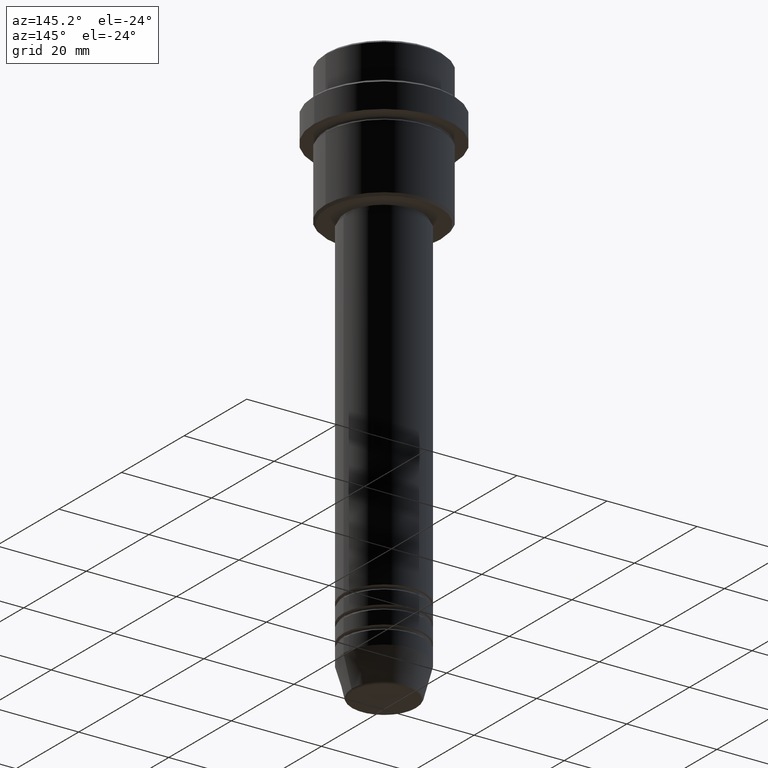
[diagram: clean part render]
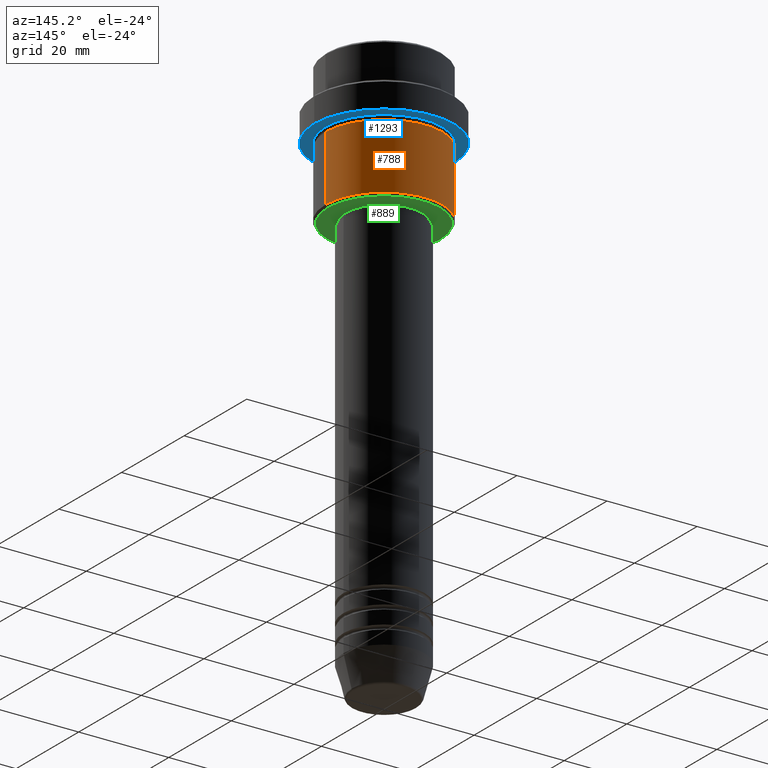
[diagram: same view with three faces highlighted in distinct colors, each labeled with its STEP entity id]
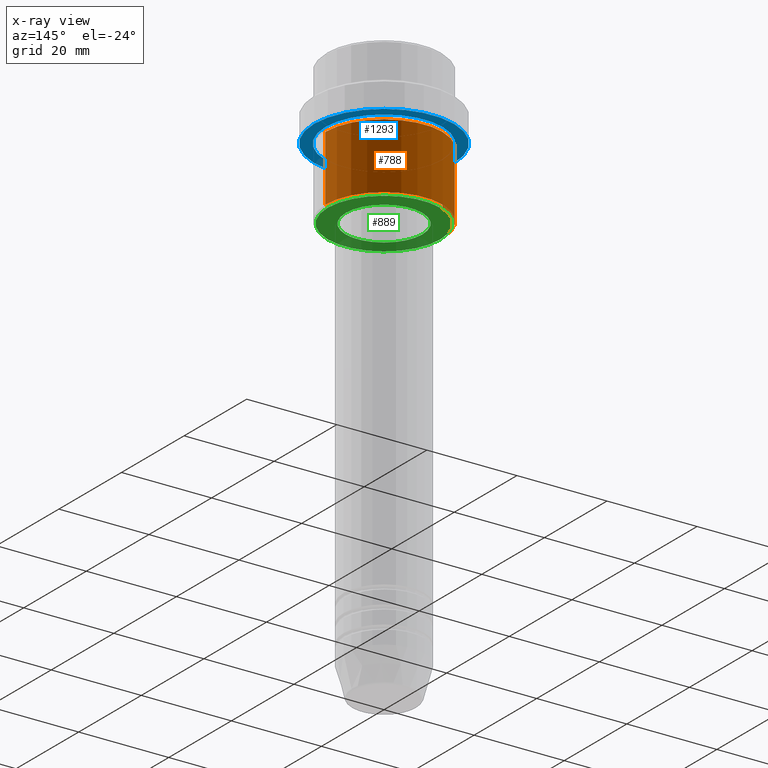
[diagram: x-ray of the same camera — body ghosted, the three highlighted faces saturated]
A machine part, auxiliary view with three faces highlighted in distinct colors.
The next image is the same camera in x-ray (body ghosted, the three faces saturated) — at least one of them is partly hidden behind the body in this view.
Their STEP definitions:

[orange] entity #788 — the highlighted cylindrical surface (partial cylindrical patch) has radius 13 mm, axis along (-0, -0, 1).
#14 = VERTEX_POINT ( 'NONE', #853 ) ;
#45 = CYLINDRICAL_SURFACE ( 'NONE', #128, 13.00000000000000000 ) ;
#46 = VERTEX_POINT ( 'NONE', #1068 ) ;
#86 = AXIS2_PLACEMENT_3D ( 'NONE', #720, #1146, #499 ) ;
#101 = DIRECTION ( 'NONE',  ( 1.000000000000000000, 0.000000000000000000, 0.000000000000000000 ) ) ;
#119 = CARTESIAN_POINT ( 'NONE',  ( -13.00000000000000000, 1.592040838891559095E-15, 0.000000000000000000 ) ) ;
#128 = AXIS2_PLACEMENT_3D ( 'NONE', #692, #372, #1344 ) ;
#180 = EDGE_CURVE ( 'NONE', #1239, #996, #672, .T. ) ;
#219 = EDGE_CURVE ( 'NONE', #14, #46, #1119, .T. ) ;
#254 = CARTESIAN_POINT ( 'NONE',  ( 13.00000000000000000, 0.000000000000000000, 0.000000000000000000 ) ) ;
#266 = VECTOR ( 'NONE', #688, 1000.000000000000000 ) ;
#270 = CIRCLE ( 'NONE', #1334, 13.00000000000000000 ) ;
#372 = DIRECTION ( 'NONE',  ( -0.000000000000000000, -0.000000000000000000, 1.000000000000000000 ) ) ;
#499 = DIRECTION ( 'NONE',  ( -1.000000000000000000, 0.000000000000000000, 0.000000000000000000 ) ) ;
#612 = EDGE_LOOP ( 'NONE', ( #619, #1237, #719, #635 ) ) ;
#619 = ORIENTED_EDGE ( 'NONE', *, *, #1222, .T. ) ;
#635 = ORIENTED_EDGE ( 'NONE', *, *, #219, .F. ) ;
#672 = LINE ( 'NONE', #119, #1101 ) ;
#688 = DIRECTION ( 'NONE',  ( -0.000000000000000000, -0.000000000000000000, 1.000000000000000000 ) ) ;
#692 = CARTESIAN_POINT ( 'NONE',  ( 0.000000000000000000, 0.000000000000000000, 0.000000000000000000 ) ) ;
#719 = ORIENTED_EDGE ( 'NONE', *, *, #870, .F. ) ;
#720 = CARTESIAN_POINT ( 'NONE',  ( 0.000000000000000000, 0.000000000000000000, -30.50000000000001776 ) ) ;
#788 = ADVANCED_FACE ( 'NONE', ( #1033 ), #45, .T. ) ;
#853 = CARTESIAN_POINT ( 'NONE',  ( 13.00000000000000000, 0.000000000000000000, -30.50000000000001776 ) ) ;
#870 = EDGE_CURVE ( 'NONE', #46, #996, #270, .T. ) ;
#980 = DIRECTION ( 'NONE',  ( -0.000000000000000000, -0.000000000000000000, 1.000000000000000000 ) ) ;
#996 = VERTEX_POINT ( 'NONE', #1333 ) ;
#1033 = FACE_OUTER_BOUND ( 'NONE', #612, .T. ) ;
#1068 = CARTESIAN_POINT ( 'NONE',  ( 13.00000000000000000, 0.000000000000000000, -16.00000000000000000 ) ) ;
#1101 = VECTOR ( 'NONE', #980, 1000.000000000000000 ) ;
#1119 = LINE ( 'NONE', #254, #266 ) ;
#1146 = DIRECTION ( 'NONE',  ( -0.000000000000000000, -0.000000000000000000, 1.000000000000000000 ) ) ;
#1155 = CIRCLE ( 'NONE', #86, 13.00000000000000000 ) ;
#1222 = EDGE_CURVE ( 'NONE', #14, #1239, #1155, .T. ) ;
#1237 = ORIENTED_EDGE ( 'NONE', *, *, #180, .T. ) ;
#1239 = VERTEX_POINT ( 'NONE', #1366 ) ;
#1299 = DIRECTION ( 'NONE',  ( -0.000000000000000000, -0.000000000000000000, 1.000000000000000000 ) ) ;
#1333 = CARTESIAN_POINT ( 'NONE',  ( -13.00000000000000000, 1.592040838891559095E-15, -16.00000000000000000 ) ) ;
#1334 = AXIS2_PLACEMENT_3D ( 'NONE', #1383, #1299, #101 ) ;
#1344 = DIRECTION ( 'NONE',  ( 1.000000000000000000, 0.000000000000000000, 0.000000000000000000 ) ) ;
#1366 = CARTESIAN_POINT ( 'NONE',  ( -13.00000000000000000, 1.592040838891559095E-15, -30.50000000000001776 ) ) ;
#1383 = CARTESIAN_POINT ( 'NONE',  ( 0.000000000000000000, 0.000000000000000000, -16.00000000000000000 ) ) ;

[blue] entity #1293 — the highlighted planar face has unit normal (0, 0, -1).
#23 = ORIENTED_EDGE ( 'NONE', *, *, #769, .F. ) ;
#224 = AXIS2_PLACEMENT_3D ( 'NONE', #1117, #1141, #698 ) ;
#267 = CIRCLE ( 'NONE', #447, 12.99999999999999467 ) ;
#273 = DIRECTION ( 'NONE',  ( -0.000000000000000000, -0.000000000000000000, 1.000000000000000000 ) ) ;
#282 = VERTEX_POINT ( 'NONE', #914 ) ;
#308 = CARTESIAN_POINT ( 'NONE',  ( 0.000000000000000000, 15.50000000000000000, -15.00000000000000000 ) ) ;
#335 = ORIENTED_EDGE ( 'NONE', *, *, #711, .F. ) ;
#348 = CARTESIAN_POINT ( 'NONE',  ( 0.000000000000000000, 0.000000000000000000, -15.00000000000000178 ) ) ;
#374 = EDGE_CURVE ( 'NONE', #1034, #282, #267, .T. ) ;
#447 = AXIS2_PLACEMENT_3D ( 'NONE', #1257, #937, #620 ) ;
#523 = AXIS2_PLACEMENT_3D ( 'NONE', #1045, #1030, #948 ) ;
#549 = CIRCLE ( 'NONE', #572, 15.50000000000000000 ) ;
#572 = AXIS2_PLACEMENT_3D ( 'NONE', #348, #273, #1026 ) ;
#620 = DIRECTION ( 'NONE',  ( -1.000000000000000000, 0.000000000000000000, 0.000000000000000000 ) ) ;
#649 = CARTESIAN_POINT ( 'NONE',  ( -15.50000000000000000, 1.898202538678397557E-15, -15.00000000000000178 ) ) ;
#698 = DIRECTION ( 'NONE',  ( 1.000000000000000000, 0.000000000000000000, 0.000000000000000000 ) ) ;
#711 = EDGE_CURVE ( 'NONE', #879, #1373, #549, .T. ) ;
#737 = FACE_BOUND ( 'NONE', #999, .T. ) ;
#744 = CARTESIAN_POINT ( 'NONE',  ( 15.50000000000000000, 0.000000000000000000, -15.00000000000000178 ) ) ;
#769 = EDGE_CURVE ( 'NONE', #1373, #879, #1037, .T. ) ;
#774 = CIRCLE ( 'NONE', #523, 12.99999999999999467 ) ;
#791 = CARTESIAN_POINT ( 'NONE',  ( -12.99999999999999467, 0.000000000000000000, -15.00000000000000000 ) ) ;
#844 = FACE_OUTER_BOUND ( 'NONE', #1060, .T. ) ;
#879 = VERTEX_POINT ( 'NONE', #744 ) ;
#914 = CARTESIAN_POINT ( 'NONE',  ( 12.99999999999999467, 1.592040838891558504E-15, -15.00000000000000000 ) ) ;
#934 = DIRECTION ( 'NONE',  ( 0.000000000000000000, 0.000000000000000000, -1.000000000000000000 ) ) ;
#937 = DIRECTION ( 'NONE',  ( -0.000000000000000000, -0.000000000000000000, 1.000000000000000000 ) ) ;
#948 = DIRECTION ( 'NONE',  ( -1.000000000000000000, 0.000000000000000000, 0.000000000000000000 ) ) ;
#999 = EDGE_LOOP ( 'NONE', ( #1102, #1348 ) ) ;
#1026 = DIRECTION ( 'NONE',  ( 1.000000000000000000, 0.000000000000000000, 0.000000000000000000 ) ) ;
#1030 = DIRECTION ( 'NONE',  ( -0.000000000000000000, -0.000000000000000000, 1.000000000000000000 ) ) ;
#1034 = VERTEX_POINT ( 'NONE', #791 ) ;
#1037 = CIRCLE ( 'NONE', #224, 15.50000000000000000 ) ;
#1045 = CARTESIAN_POINT ( 'NONE',  ( 0.000000000000000000, 0.000000000000000000, -15.00000000000000000 ) ) ;
#1060 = EDGE_LOOP ( 'NONE', ( #335, #23 ) ) ;
#1102 = ORIENTED_EDGE ( 'NONE', *, *, #374, .T. ) ;
#1117 = CARTESIAN_POINT ( 'NONE',  ( 0.000000000000000000, 0.000000000000000000, -15.00000000000000178 ) ) ;
#1141 = DIRECTION ( 'NONE',  ( -0.000000000000000000, -0.000000000000000000, 1.000000000000000000 ) ) ;
#1181 = AXIS2_PLACEMENT_3D ( 'NONE', #308, #934, #1372 ) ;
#1187 = EDGE_CURVE ( 'NONE', #282, #1034, #774, .T. ) ;
#1257 = CARTESIAN_POINT ( 'NONE',  ( 0.000000000000000000, 0.000000000000000000, -15.00000000000000000 ) ) ;
#1293 = ADVANCED_FACE ( 'NONE', ( #737, #844 ), #1355, .T. ) ;
#1348 = ORIENTED_EDGE ( 'NONE', *, *, #1187, .T. ) ;
#1355 = PLANE ( 'NONE',  #1181 ) ;
#1372 = DIRECTION ( 'NONE',  ( -1.000000000000000000, 0.000000000000000000, -0.000000000000000000 ) ) ;
#1373 = VERTEX_POINT ( 'NONE', #649 ) ;

[green] entity #889 — the highlighted planar face has unit normal (0, 0, -1).
#36 = AXIS2_PLACEMENT_3D ( 'NONE', #801, #1000, #684 ) ;
#40 = DIRECTION ( 'NONE',  ( 0.000000000000000000, 0.000000000000000000, -1.000000000000000000 ) ) ;
#72 = CARTESIAN_POINT ( 'NONE',  ( 0.000000000000000000, 0.000000000000000000, -30.99999999999999645 ) ) ;
#125 = CARTESIAN_POINT ( 'NONE',  ( 12.50000000000001066, 0.000000000000000000, -30.99999999999999645 ) ) ;
#134 = VERTEX_POINT ( 'NONE', #1106 ) ;
#149 = EDGE_LOOP ( 'NONE', ( #345, #1345 ) ) ;
#196 = VERTEX_POINT ( 'NONE', #125 ) ;
#323 = AXIS2_PLACEMENT_3D ( 'NONE', #739, #1283, #1066 ) ;
#325 = CIRCLE ( 'NONE', #36, 12.50000000000001066 ) ;
#332 = EDGE_CURVE ( 'NONE', #581, #196, #942, .T. ) ;
#337 = AXIS2_PLACEMENT_3D ( 'NONE', #72, #40, #811 ) ;
#340 = CIRCLE ( 'NONE', #972, 8.499999999999994671 ) ;
#345 = ORIENTED_EDGE ( 'NONE', *, *, #1015, .T. ) ;
#415 = FACE_OUTER_BOUND ( 'NONE', #149, .T. ) ;
#424 = DIRECTION ( 'NONE',  ( -0.000000000000000000, -0.000000000000000000, 1.000000000000000000 ) ) ;
#531 = ORIENTED_EDGE ( 'NONE', *, *, #1094, .T. ) ;
#547 = PLANE ( 'NONE',  #323 ) ;
#581 = VERTEX_POINT ( 'NONE', #1097 ) ;
#633 = DIRECTION ( 'NONE',  ( 1.000000000000000000, 0.000000000000000000, 0.000000000000000000 ) ) ;
#684 = DIRECTION ( 'NONE',  ( -1.000000000000000000, 0.000000000000000000, 0.000000000000000000 ) ) ;
#739 = CARTESIAN_POINT ( 'NONE',  ( 0.000000000000000000, 13.00000000000000000, -30.99999999999999645 ) ) ;
#801 = CARTESIAN_POINT ( 'NONE',  ( 0.000000000000000000, 0.000000000000000000, -30.99999999999999645 ) ) ;
#811 = DIRECTION ( 'NONE',  ( -1.000000000000000000, 0.000000000000000000, 0.000000000000000000 ) ) ;
#814 = ORIENTED_EDGE ( 'NONE', *, *, #1314, .T. ) ;
#825 = AXIS2_PLACEMENT_3D ( 'NONE', #1180, #424, #633 ) ;
#841 = FACE_BOUND ( 'NONE', #1145, .T. ) ;
#858 = CIRCLE ( 'NONE', #825, 8.499999999999994671 ) ;
#889 = ADVANCED_FACE ( 'NONE', ( #415, #841 ), #547, .T. ) ;
#942 = CIRCLE ( 'NONE', #337, 12.50000000000001066 ) ;
#972 = AXIS2_PLACEMENT_3D ( 'NONE', #1349, #1132, #1326 ) ;
#1000 = DIRECTION ( 'NONE',  ( 0.000000000000000000, 0.000000000000000000, -1.000000000000000000 ) ) ;
#1015 = EDGE_CURVE ( 'NONE', #196, #581, #325, .T. ) ;
#1066 = DIRECTION ( 'NONE',  ( -1.000000000000000000, 0.000000000000000000, -0.000000000000000000 ) ) ;
#1094 = EDGE_CURVE ( 'NONE', #134, #1208, #340, .T. ) ;
#1097 = CARTESIAN_POINT ( 'NONE',  ( -12.50000000000001066, 1.561424668912876097E-15, -30.99999999999999645 ) ) ;
#1106 = CARTESIAN_POINT ( 'NONE',  ( 8.499999999999994671, 0.000000000000000000, -30.99999999999999289 ) ) ;
#1132 = DIRECTION ( 'NONE',  ( -0.000000000000000000, -0.000000000000000000, 1.000000000000000000 ) ) ;
#1139 = CARTESIAN_POINT ( 'NONE',  ( -8.499999999999994671, 1.040949779275249745E-15, -30.99999999999999289 ) ) ;
#1145 = EDGE_LOOP ( 'NONE', ( #531, #814 ) ) ;
#1180 = CARTESIAN_POINT ( 'NONE',  ( 0.000000000000000000, 0.000000000000000000, -30.99999999999999289 ) ) ;
#1208 = VERTEX_POINT ( 'NONE', #1139 ) ;
#1283 = DIRECTION ( 'NONE',  ( 0.000000000000000000, 0.000000000000000000, -1.000000000000000000 ) ) ;
#1314 = EDGE_CURVE ( 'NONE', #1208, #134, #858, .T. ) ;
#1326 = DIRECTION ( 'NONE',  ( 1.000000000000000000, 0.000000000000000000, 0.000000000000000000 ) ) ;
#1345 = ORIENTED_EDGE ( 'NONE', *, *, #332, .T. ) ;
#1349 = CARTESIAN_POINT ( 'NONE',  ( 0.000000000000000000, 0.000000000000000000, -30.99999999999999289 ) ) ;